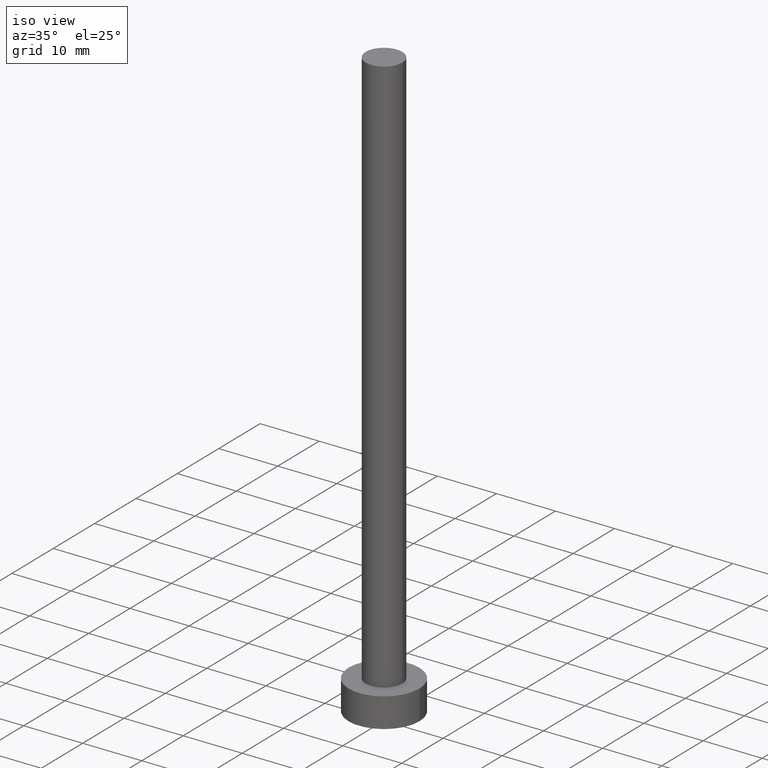
[diagram: clean part render]
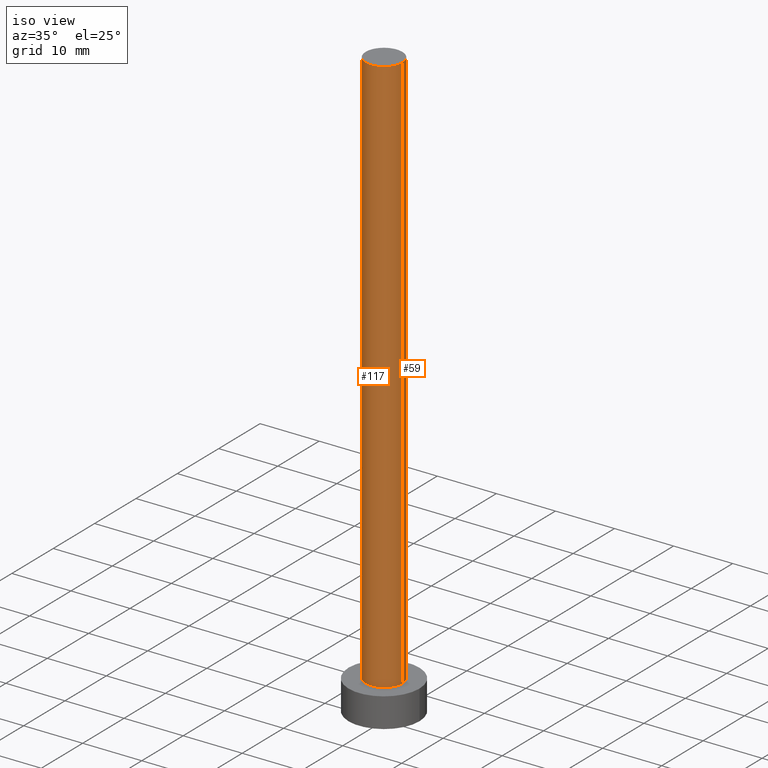
[diagram: same view with one multi-face feature highlighted, each face labeled with its STEP entity id]
A machine part, iso view. The highlighted faces form ONE feature: a constant-radius fillet chain: 2 tangent blend faces with common blend radius 3.1 mm. The faces share edges in the B-rep.
Their STEP definitions:
[1] entity #117 (Cylinder):
#1 = VERTEX_POINT ( 'NONE', #127 ) ;
#5 = ORIENTED_EDGE ( 'NONE', *, *, #101, .T. ) ;
#19 = FACE_OUTER_BOUND ( 'NONE', #243, .T. ) ;
#20 = AXIS2_PLACEMENT_3D ( 'NONE', #193, #95, #228 ) ;
#21 = CARTESIAN_POINT ( 'NONE',  ( -3.100000000000000089, 0.000000000000000000, 100.0000000000000000 ) ) ;
#25 = ORIENTED_EDGE ( 'NONE', *, *, #45, .T. ) ;
#27 = ORIENTED_EDGE ( 'NONE', *, *, #232, .F. ) ;
#34 = CARTESIAN_POINT ( 'NONE',  ( 3.100000000000000089, 3.796405077356794918E-16, 100.0000000000000000 ) ) ;
#36 = DIRECTION ( 'NONE',  ( 1.000000000000000000, 0.000000000000000000, 0.000000000000000000 ) ) ;
#42 = VECTOR ( 'NONE', #194, 1000.000000000000000 ) ;
#45 = EDGE_CURVE ( 'NONE', #182, #143, #203, .T. ) ;
#64 = AXIS2_PLACEMENT_3D ( 'NONE', #75, #98, #195 ) ;
#75 = CARTESIAN_POINT ( 'NONE',  ( 0.000000000000000000, 0.000000000000000000, 5.000000000000000000 ) ) ;
#79 = AXIS2_PLACEMENT_3D ( 'NONE', #176, #134, #36 ) ;
#95 = DIRECTION ( 'NONE',  ( -0.000000000000000000, -0.000000000000000000, -1.000000000000000000 ) ) ;
#98 = DIRECTION ( 'NONE',  ( 0.000000000000000000, 0.000000000000000000, 1.000000000000000000 ) ) ;
#101 = EDGE_CURVE ( 'NONE', #143, #246, #216, .T. ) ;
#108 = DIRECTION ( 'NONE',  ( -0.000000000000000000, -0.000000000000000000, -1.000000000000000000 ) ) ;
#112 = CARTESIAN_POINT ( 'NONE',  ( 3.100000000000000089, 3.796405077356794918E-16, 5.000000000000000000 ) ) ;
#117 = ADVANCED_FACE ( 'NONE', ( #19 ), #249, .T. ) ;
#127 = CARTESIAN_POINT ( 'NONE',  ( 3.100000000000000089, 3.796405077356794918E-16, 100.0000000000000000 ) ) ;
#134 = DIRECTION ( 'NONE',  ( 0.000000000000000000, 0.000000000000000000, 1.000000000000000000 ) ) ;
#135 = CIRCLE ( 'NONE', #79, 3.100000000000000089 ) ;
#143 = VERTEX_POINT ( 'NONE', #209 ) ;
#176 = CARTESIAN_POINT ( 'NONE',  ( 0.000000000000000000, 0.000000000000000000, 100.0000000000000000 ) ) ;
#182 = VERTEX_POINT ( 'NONE', #21 ) ;
#188 = CARTESIAN_POINT ( 'NONE',  ( -3.100000000000000089, 0.000000000000000000, 100.0000000000000000 ) ) ;
#193 = CARTESIAN_POINT ( 'NONE',  ( 0.000000000000000000, 0.000000000000000000, 100.0000000000000000 ) ) ;
#194 = DIRECTION ( 'NONE',  ( -0.000000000000000000, -0.000000000000000000, -1.000000000000000000 ) ) ;
#195 = DIRECTION ( 'NONE',  ( 1.000000000000000000, 0.000000000000000000, 0.000000000000000000 ) ) ;
#203 = LINE ( 'NONE', #188, #245 ) ;
#209 = CARTESIAN_POINT ( 'NONE',  ( -3.100000000000000089, 0.000000000000000000, 5.000000000000000000 ) ) ;
#210 = LINE ( 'NONE', #34, #42 ) ;
#216 = CIRCLE ( 'NONE', #64, 3.100000000000000089 ) ;
#228 = DIRECTION ( 'NONE',  ( -1.000000000000000000, 0.000000000000000000, 0.000000000000000000 ) ) ;
#232 = EDGE_CURVE ( 'NONE', #182, #1, #135, .T. ) ;
#234 = EDGE_CURVE ( 'NONE', #1, #246, #210, .T. ) ;
#243 = EDGE_LOOP ( 'NONE', ( #244, #27, #25, #5 ) ) ;
#244 = ORIENTED_EDGE ( 'NONE', *, *, #234, .F. ) ;
#245 = VECTOR ( 'NONE', #108, 1000.000000000000000 ) ;
#246 = VERTEX_POINT ( 'NONE', #112 ) ;
#249 = CYLINDRICAL_SURFACE ( 'NONE', #20, 3.100000000000000089 ) ;
[2] entity #59 (Cylinder):
#1 = VERTEX_POINT ( 'NONE', #127 ) ;
#11 = FACE_OUTER_BOUND ( 'NONE', #166, .T. ) ;
#15 = EDGE_CURVE ( 'NONE', #246, #143, #41, .T. ) ;
#21 = CARTESIAN_POINT ( 'NONE',  ( -3.100000000000000089, 0.000000000000000000, 100.0000000000000000 ) ) ;
#28 = DIRECTION ( 'NONE',  ( 1.000000000000000000, 0.000000000000000000, 0.000000000000000000 ) ) ;
#32 = DIRECTION ( 'NONE',  ( -1.000000000000000000, 0.000000000000000000, 0.000000000000000000 ) ) ;
#34 = CARTESIAN_POINT ( 'NONE',  ( 3.100000000000000089, 3.796405077356794918E-16, 100.0000000000000000 ) ) ;
#41 = CIRCLE ( 'NONE', #185, 3.100000000000000089 ) ;
#42 = VECTOR ( 'NONE', #194, 1000.000000000000000 ) ;
#43 = EDGE_CURVE ( 'NONE', #1, #182, #77, .T. ) ;
#45 = EDGE_CURVE ( 'NONE', #182, #143, #203, .T. ) ;
#52 = ORIENTED_EDGE ( 'NONE', *, *, #15, .T. ) ;
#54 = CARTESIAN_POINT ( 'NONE',  ( 0.000000000000000000, 0.000000000000000000, 100.0000000000000000 ) ) ;
#59 = ADVANCED_FACE ( 'NONE', ( #11 ), #91, .T. ) ;
#72 = ORIENTED_EDGE ( 'NONE', *, *, #43, .F. ) ;
#77 = CIRCLE ( 'NONE', #214, 3.100000000000000089 ) ;
#91 = CYLINDRICAL_SURFACE ( 'NONE', #250, 3.100000000000000089 ) ;
#102 = ORIENTED_EDGE ( 'NONE', *, *, #234, .T. ) ;
#107 = ORIENTED_EDGE ( 'NONE', *, *, #45, .F. ) ;
#108 = DIRECTION ( 'NONE',  ( -0.000000000000000000, -0.000000000000000000, -1.000000000000000000 ) ) ;
#112 = CARTESIAN_POINT ( 'NONE',  ( 3.100000000000000089, 3.796405077356794918E-16, 5.000000000000000000 ) ) ;
#127 = CARTESIAN_POINT ( 'NONE',  ( 3.100000000000000089, 3.796405077356794918E-16, 100.0000000000000000 ) ) ;
#130 = DIRECTION ( 'NONE',  ( -0.000000000000000000, -0.000000000000000000, -1.000000000000000000 ) ) ;
#143 = VERTEX_POINT ( 'NONE', #209 ) ;
#147 = DIRECTION ( 'NONE',  ( 0.000000000000000000, 0.000000000000000000, 1.000000000000000000 ) ) ;
#166 = EDGE_LOOP ( 'NONE', ( #72, #102, #52, #107 ) ) ;
#168 = DIRECTION ( 'NONE',  ( 1.000000000000000000, 0.000000000000000000, 0.000000000000000000 ) ) ;
#182 = VERTEX_POINT ( 'NONE', #21 ) ;
#185 = AXIS2_PLACEMENT_3D ( 'NONE', #221, #226, #168 ) ;
#188 = CARTESIAN_POINT ( 'NONE',  ( -3.100000000000000089, 0.000000000000000000, 100.0000000000000000 ) ) ;
#194 = DIRECTION ( 'NONE',  ( -0.000000000000000000, -0.000000000000000000, -1.000000000000000000 ) ) ;
#203 = LINE ( 'NONE', #188, #245 ) ;
#204 = CARTESIAN_POINT ( 'NONE',  ( 0.000000000000000000, 0.000000000000000000, 100.0000000000000000 ) ) ;
#209 = CARTESIAN_POINT ( 'NONE',  ( -3.100000000000000089, 0.000000000000000000, 5.000000000000000000 ) ) ;
#210 = LINE ( 'NONE', #34, #42 ) ;
#214 = AXIS2_PLACEMENT_3D ( 'NONE', #204, #147, #28 ) ;
#221 = CARTESIAN_POINT ( 'NONE',  ( 0.000000000000000000, 0.000000000000000000, 5.000000000000000000 ) ) ;
#226 = DIRECTION ( 'NONE',  ( 0.000000000000000000, 0.000000000000000000, 1.000000000000000000 ) ) ;
#234 = EDGE_CURVE ( 'NONE', #1, #246, #210, .T. ) ;
#245 = VECTOR ( 'NONE', #108, 1000.000000000000000 ) ;
#246 = VERTEX_POINT ( 'NONE', #112 ) ;
#250 = AXIS2_PLACEMENT_3D ( 'NONE', #54, #130, #32 ) ;